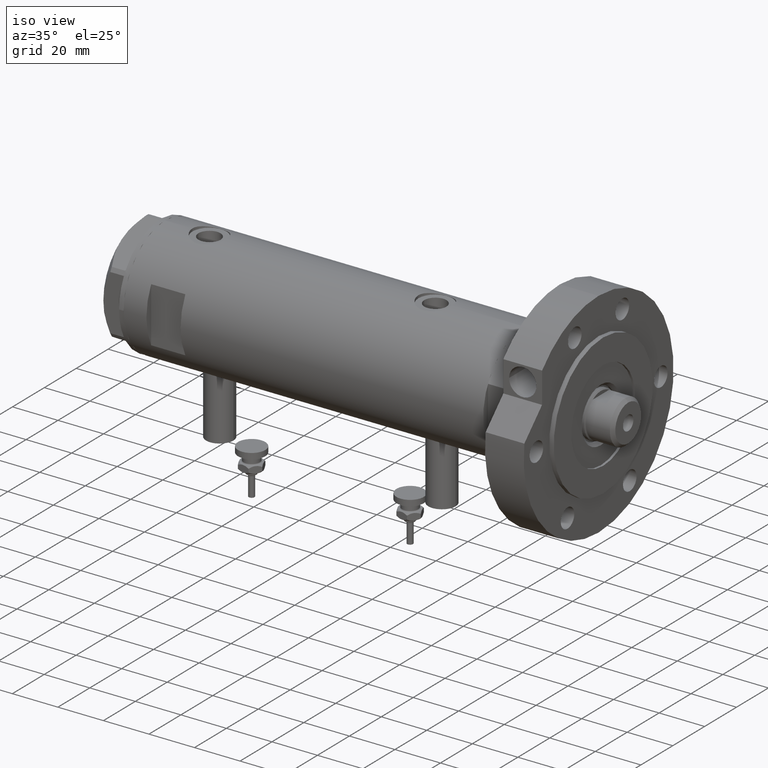
[diagram: clean part render]
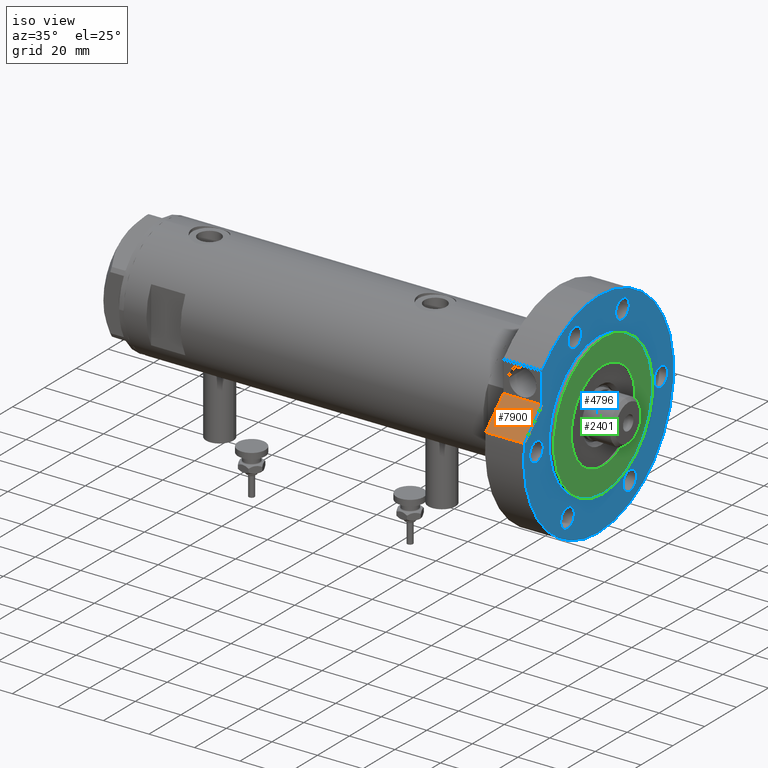
[diagram: same view with three faces highlighted in distinct colors, each labeled with its STEP entity id]
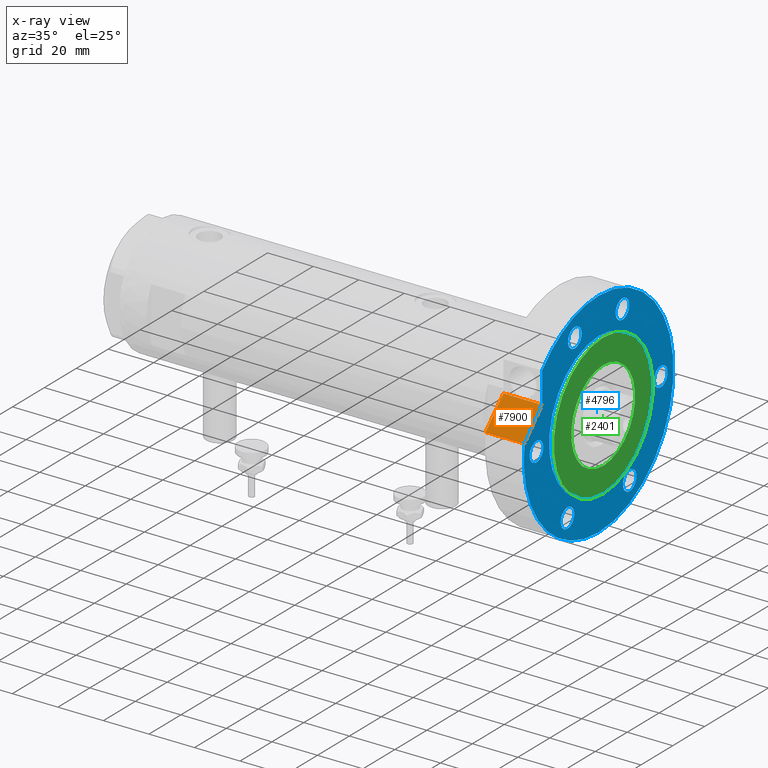
[diagram: x-ray of the same camera — body ghosted, the three highlighted faces saturated]
A machine part, iso view with three faces highlighted in distinct colors.
The next image is the same camera in x-ray (body ghosted, the three faces saturated) — at least one of them is partly hidden behind the body in this view.
Their STEP definitions:

[orange] entity #7900 — the highlighted planar face has unit normal (-0, 0.7071, -0.7071).
#119 = EDGE_CURVE ( 'NONE', #4476, #2742, #2832, .T. ) ;
#194 = CARTESIAN_POINT ( 'NONE',  ( 6.092310621118299352, 46.60347359688769586, 17.00000000000000000 ) ) ;
#790 = ORIENTED_EDGE ( 'NONE', *, *, #3717, .F. ) ;
#897 = VECTOR ( 'NONE', #1843, 999.9999999999998863 ) ;
#950 = LINE ( 'NONE', #3419, #7839 ) ;
#1762 = ORIENTED_EDGE ( 'NONE', *, *, #6069, .F. ) ;
#1804 = ORIENTED_EDGE ( 'NONE', *, *, #119, .T. ) ;
#1843 = DIRECTION ( 'NONE',  ( 0.7071067811865511255, -0.7071067811865440200, -0.000000000000000000 ) ) ;
#1908 = CARTESIAN_POINT ( 'NONE',  ( 17.22217135699461110, 35.47361286101150313, 0.000000000000000000 ) ) ;
#2241 = DIRECTION ( 'NONE',  ( 0.7071067811865511255, -0.7071067811865440200, 0.000000000000000000 ) ) ;
#2339 = CARTESIAN_POINT ( 'NONE',  ( 17.22217135699461110, 35.47361286101150313, 17.00000000000000000 ) ) ;
#2673 = ORIENTED_EDGE ( 'NONE', *, *, #6014, .T. ) ;
#2742 = VERTEX_POINT ( 'NONE', #194 ) ;
#2832 = LINE ( 'NONE', #5201, #7341 ) ;
#3162 = VERTEX_POINT ( 'NONE', #3977 ) ;
#3419 = CARTESIAN_POINT ( 'NONE',  ( 26.34789210900296652, 26.34789210900323297, 17.00000000000000000 ) ) ;
#3491 = CARTESIAN_POINT ( 'NONE',  ( 17.22217135699461110, 35.47361286101150313, 0.000000000000000000 ) ) ;
#3656 = LINE ( 'NONE', #3491, #897 ) ;
#3717 = EDGE_CURVE ( 'NONE', #3162, #4267, #6638, .T. ) ;
#3977 = CARTESIAN_POINT ( 'NONE',  ( 17.22217135699460755, 35.47361286101150313, 0.000000000000000000 ) ) ;
#4267 = VERTEX_POINT ( 'NONE', #2339 ) ;
#4281 = DIRECTION ( 'NONE',  ( -0.000000000000000000, -0.000000000000000000, 1.000000000000000000 ) ) ;
#4476 = VERTEX_POINT ( 'NONE', #6542 ) ;
#4504 = DIRECTION ( 'NONE',  ( -0.7071067811865440200, -0.7071067811865511255, 0.000000000000000000 ) ) ;
#5109 = FACE_OUTER_BOUND ( 'NONE', #5746, .T. ) ;
#5201 = CARTESIAN_POINT ( 'NONE',  ( 6.092310621118299352, 46.60347359688769586, 0.000000000000000000 ) ) ;
#5746 = EDGE_LOOP ( 'NONE', ( #2673, #790, #1762, #1804 ) ) ;
#6014 = EDGE_CURVE ( 'NONE', #2742, #4267, #950, .T. ) ;
#6069 = EDGE_CURVE ( 'NONE', #4476, #3162, #3656, .T. ) ;
#6542 = CARTESIAN_POINT ( 'NONE',  ( 6.092310621118299352, 46.60347359688769586, 0.000000000000000000 ) ) ;
#6638 = LINE ( 'NONE', #1908, #7698 ) ;
#6957 = DIRECTION ( 'NONE',  ( 0.7071067811865511255, -0.7071067811865440200, 0.000000000000000000 ) ) ;
#7035 = CARTESIAN_POINT ( 'NONE',  ( 17.22217135699461110, 35.47361286101150313, 0.000000000000000000 ) ) ;
#7215 = AXIS2_PLACEMENT_3D ( 'NONE', #7035, #4504, #6957 ) ;
#7341 = VECTOR ( 'NONE', #7524, 1000.000000000000000 ) ;
#7524 = DIRECTION ( 'NONE',  ( -0.000000000000000000, -0.000000000000000000, 1.000000000000000000 ) ) ;
#7554 = PLANE ( 'NONE',  #7215 ) ;
#7698 = VECTOR ( 'NONE', #4281, 1000.000000000000000 ) ;
#7839 = VECTOR ( 'NONE', #2241, 999.9999999999998863 ) ;
#7900 = ADVANCED_FACE ( 'NONE', ( #5109 ), #7554, .F. ) ;

[blue] entity #4796 — the highlighted planar face has unit normal (1, 0, -0).
#124 = AXIS2_PLACEMENT_3D ( 'NONE', #3122, #4837, #7277 ) ;
#152 = VERTEX_POINT ( 'NONE', #4553 ) ;
#180 = VERTEX_POINT ( 'NONE', #886 ) ;
#194 = CARTESIAN_POINT ( 'NONE',  ( 6.092310621118299352, 46.60347359688769586, 17.00000000000000000 ) ) ;
#204 = EDGE_CURVE ( 'NONE', #3817, #2890, #7472, .T. ) ;
#209 = ORIENTED_EDGE ( 'NONE', *, *, #7247, .F. ) ;
#239 = CARTESIAN_POINT ( 'NONE',  ( 0.000000000000000000, 39.00000000000000000, 17.00000000000000000 ) ) ;
#323 = CARTESIAN_POINT ( 'NONE',  ( -31.00000000000000711, 0.000000000000000000, 17.00000000000000000 ) ) ;
#364 = EDGE_CURVE ( 'NONE', #1873, #7558, #4274, .T. ) ;
#393 = AXIS2_PLACEMENT_3D ( 'NONE', #4182, #6620, #1768 ) ;
#419 = ORIENTED_EDGE ( 'NONE', *, *, #7782, .F. ) ;
#512 = CIRCLE ( 'NONE', #6034, 46.99999999999999289 ) ;
#528 = CARTESIAN_POINT ( 'NONE',  ( 40.28130176794012129, -14.92465386223865842, 17.00000000000000000 ) ) ;
#713 = PLANE ( 'NONE',  #1805 ) ;
#758 = CARTESIAN_POINT ( 'NONE',  ( -38.02499074759315079, 19.49999999999992539, 17.00000000000000000 ) ) ;
#824 = VERTEX_POINT ( 'NONE', #1900 ) ;
#886 = CARTESIAN_POINT ( 'NONE',  ( -29.52499074759301578, -19.50000000000015277, 17.00000000000000000 ) ) ;
#931 = DIRECTION ( 'NONE',  ( 1.000000000000000000, 0.000000000000000000, 0.000000000000000000 ) ) ;
#932 = CIRCLE ( 'NONE', #4789, 46.99999999999999289 ) ;
#950 = LINE ( 'NONE', #3419, #7839 ) ;
#965 = CARTESIAN_POINT ( 'NONE',  ( 4.250000000000000888, 39.00000000000000000, 17.00000000000000000 ) ) ;
#1014 = CARTESIAN_POINT ( 'NONE',  ( 36.03130176794011419, 14.92465386223865842, 17.00000000000000000 ) ) ;
#1131 = CARTESIAN_POINT ( 'NONE',  ( 31.78130176794011064, 14.92465386223865842, 17.00000000000000000 ) ) ;
#1185 = CARTESIAN_POINT ( 'NONE',  ( -33.77499074759302289, -19.50000000000015277, 17.00000000000000000 ) ) ;
#1229 = DIRECTION ( 'NONE',  ( 1.000000000000000000, 0.000000000000000000, 0.000000000000000000 ) ) ;
#1296 = AXIS2_PLACEMENT_3D ( 'NONE', #6671, #7357, #6715 ) ;
#1315 = CIRCLE ( 'NONE', #4909, 31.00000000000000711 ) ;
#1336 = CARTESIAN_POINT ( 'NONE',  ( 30.83217135699462830, 35.47361286101148892, 17.00000000000000000 ) ) ;
#1341 = AXIS2_PLACEMENT_3D ( 'NONE', #2567, #2610, #3785 ) ;
#1349 = CARTESIAN_POINT ( 'NONE',  ( 40.28130176794012129, 14.92465386223865842, 17.00000000000000000 ) ) ;
#1388 = FACE_BOUND ( 'NONE', #1776, .T. ) ;
#1422 = CIRCLE ( 'NONE', #1341, 4.250000000000000888 ) ;
#1459 = AXIS2_PLACEMENT_3D ( 'NONE', #6007, #4717, #6527 ) ;
#1531 = ORIENTED_EDGE ( 'NONE', *, *, #7781, .T. ) ;
#1555 = DIRECTION ( 'NONE',  ( 1.000000000000000000, 0.000000000000000000, 0.000000000000000000 ) ) ;
#1583 = CARTESIAN_POINT ( 'NONE',  ( 36.03130176794011419, 14.92465386223865842, 17.00000000000000000 ) ) ;
#1708 = DIRECTION ( 'NONE',  ( 0.000000000000000000, 0.000000000000000000, 1.000000000000000000 ) ) ;
#1768 = DIRECTION ( 'NONE',  ( 1.000000000000000000, 0.000000000000000000, 0.000000000000000000 ) ) ;
#1776 = EDGE_LOOP ( 'NONE', ( #2712, #4375 ) ) ;
#1795 = DIRECTION ( 'NONE',  ( 1.000000000000000000, 0.000000000000000000, 0.000000000000000000 ) ) ;
#1805 = AXIS2_PLACEMENT_3D ( 'NONE', #5581, #7505, #7461 ) ;
#1873 = VERTEX_POINT ( 'NONE', #1349 ) ;
#1884 = EDGE_LOOP ( 'NONE', ( #2767, #5676 ) ) ;
#1900 = CARTESIAN_POINT ( 'NONE',  ( 31.78130176794011064, -14.92465386223865842, 17.00000000000000000 ) ) ;
#1946 = CIRCLE ( 'NONE', #124, 4.250000000000003553 ) ;
#1958 = CARTESIAN_POINT ( 'NONE',  ( -33.77499074759315079, 19.49999999999992539, 17.00000000000000000 ) ) ;
#2012 = EDGE_CURVE ( 'NONE', #4256, #824, #6597, .T. ) ;
#2060 = CARTESIAN_POINT ( 'NONE',  ( 0.000000000000000000, 0.000000000000000000, 17.00000000000000000 ) ) ;
#2106 = EDGE_LOOP ( 'NONE', ( #209, #6659 ) ) ;
#2112 = ORIENTED_EDGE ( 'NONE', *, *, #4852, .F. ) ;
#2143 = DIRECTION ( 'NONE',  ( 0.000000000000000000, 0.000000000000000000, 1.000000000000000000 ) ) ;
#2192 = EDGE_CURVE ( 'NONE', #2640, #4579, #7498, .T. ) ;
#2223 = DIRECTION ( 'NONE',  ( 0.000000000000000000, 0.000000000000000000, 1.000000000000000000 ) ) ;
#2241 = DIRECTION ( 'NONE',  ( 0.7071067811865511255, -0.7071067811865440200, 0.000000000000000000 ) ) ;
#2269 = ORIENTED_EDGE ( 'NONE', *, *, #5683, .F. ) ;
#2328 = CIRCLE ( 'NONE', #3759, 4.249999999999996447 ) ;
#2339 = CARTESIAN_POINT ( 'NONE',  ( 17.22217135699461110, 35.47361286101150313, 17.00000000000000000 ) ) ;
#2342 = EDGE_CURVE ( 'NONE', #824, #4256, #7040, .T. ) ;
#2362 = DIRECTION ( 'NONE',  ( 0.000000000000000000, 0.000000000000000000, 1.000000000000000000 ) ) ;
#2474 = CARTESIAN_POINT ( 'NONE',  ( 4.250000000000000888, -39.00000000000000000, 17.00000000000000000 ) ) ;
#2535 = VERTEX_POINT ( 'NONE', #7927 ) ;
#2567 = CARTESIAN_POINT ( 'NONE',  ( 0.000000000000000000, 39.00000000000000000, 17.00000000000000000 ) ) ;
#2606 = AXIS2_PLACEMENT_3D ( 'NONE', #5844, #6964, #7684 ) ;
#2610 = DIRECTION ( 'NONE',  ( 0.000000000000000000, 0.000000000000000000, 1.000000000000000000 ) ) ;
#2632 = VERTEX_POINT ( 'NONE', #758 ) ;
#2640 = VERTEX_POINT ( 'NONE', #7595 ) ;
#2648 = FACE_BOUND ( 'NONE', #3802, .T. ) ;
#2664 = DIRECTION ( 'NONE',  ( 1.000000000000000000, 0.000000000000000000, 0.000000000000000000 ) ) ;
#2688 = EDGE_CURVE ( 'NONE', #5032, #2632, #6398, .T. ) ;
#2712 = ORIENTED_EDGE ( 'NONE', *, *, #4264, .F. ) ;
#2730 = CARTESIAN_POINT ( 'NONE',  ( 3.617158501555293296E-14, 35.47361286101151734, 17.00000000000000000 ) ) ;
#2742 = VERTEX_POINT ( 'NONE', #194 ) ;
#2767 = ORIENTED_EDGE ( 'NONE', *, *, #6255, .F. ) ;
#2890 = VERTEX_POINT ( 'NONE', #3439 ) ;
#2952 = AXIS2_PLACEMENT_3D ( 'NONE', #3196, #3161, #5594 ) ;
#3065 = VERTEX_POINT ( 'NONE', #4024 ) ;
#3122 = CARTESIAN_POINT ( 'NONE',  ( -33.77499074759302289, -19.50000000000015277, 17.00000000000000000 ) ) ;
#3161 = DIRECTION ( 'NONE',  ( 0.000000000000000000, 0.000000000000000000, 1.000000000000000000 ) ) ;
#3196 = CARTESIAN_POINT ( 'NONE',  ( -33.77499074759315079, 19.49999999999992539, 17.00000000000000000 ) ) ;
#3214 = FACE_BOUND ( 'NONE', #1884, .T. ) ;
#3254 = ORIENTED_EDGE ( 'NONE', *, *, #3674, .T. ) ;
#3266 = CARTESIAN_POINT ( 'NONE',  ( -38.02499074759302289, -19.50000000000015277, 17.00000000000000000 ) ) ;
#3408 = DIRECTION ( 'NONE',  ( 1.000000000000000000, 0.000000000000000000, 0.000000000000000000 ) ) ;
#3419 = CARTESIAN_POINT ( 'NONE',  ( 26.34789210900296652, 26.34789210900323297, 17.00000000000000000 ) ) ;
#3439 = CARTESIAN_POINT ( 'NONE',  ( -4.250000000000000888, -39.00000000000000000, 17.00000000000000000 ) ) ;
#3494 = DIRECTION ( 'NONE',  ( 0.000000000000000000, 0.000000000000000000, 1.000000000000000000 ) ) ;
#3674 = EDGE_CURVE ( 'NONE', #2535, #3871, #512, .T. ) ;
#3759 = AXIS2_PLACEMENT_3D ( 'NONE', #1958, #6770, #1229 ) ;
#3769 = AXIS2_PLACEMENT_3D ( 'NONE', #1185, #7287, #4884 ) ;
#3785 = DIRECTION ( 'NONE',  ( 1.000000000000000000, 0.000000000000000000, 0.000000000000000000 ) ) ;
#3802 = EDGE_LOOP ( 'NONE', ( #7276, #4936 ) ) ;
#3817 = VERTEX_POINT ( 'NONE', #2474 ) ;
#3824 = ORIENTED_EDGE ( 'NONE', *, *, #364, .F. ) ;
#3825 = EDGE_CURVE ( 'NONE', #180, #5545, #1946, .T. ) ;
#3871 = VERTEX_POINT ( 'NONE', #1336 ) ;
#3877 = DIRECTION ( 'NONE',  ( 1.000000000000000000, 0.000000000000000000, 0.000000000000000000 ) ) ;
#3882 = EDGE_LOOP ( 'NONE', ( #419, #3824 ) ) ;
#3976 = LINE ( 'NONE', #2730, #7057 ) ;
#4024 = CARTESIAN_POINT ( 'NONE',  ( 31.00000000000000711, 3.796405077356795904E-15, 17.00000000000000000 ) ) ;
#4182 = CARTESIAN_POINT ( 'NONE',  ( 0.000000000000000000, 0.000000000000000000, 17.00000000000000000 ) ) ;
#4247 = EDGE_LOOP ( 'NONE', ( #2269, #7286 ) ) ;
#4256 = VERTEX_POINT ( 'NONE', #528 ) ;
#4264 = EDGE_CURVE ( 'NONE', #2890, #3817, #5411, .T. ) ;
#4267 = VERTEX_POINT ( 'NONE', #2339 ) ;
#4274 = CIRCLE ( 'NONE', #5293, 4.250000000000003553 ) ;
#4375 = ORIENTED_EDGE ( 'NONE', *, *, #204, .F. ) ;
#4553 = CARTESIAN_POINT ( 'NONE',  ( -46.99999999999999289, 0.000000000000000000, 17.00000000000000000 ) ) ;
#4579 = VERTEX_POINT ( 'NONE', #965 ) ;
#4602 = CARTESIAN_POINT ( 'NONE',  ( 0.000000000000000000, 0.000000000000000000, 17.00000000000000000 ) ) ;
#4717 = DIRECTION ( 'NONE',  ( 0.000000000000000000, 0.000000000000000000, 1.000000000000000000 ) ) ;
#4789 = AXIS2_PLACEMENT_3D ( 'NONE', #2060, #7720, #931 ) ;
#4796 = ADVANCED_FACE ( 'NONE', ( #6253, #5056, #2648, #1388, #7419, #3214, #6222, #6294 ), #713, .T. ) ;
#4837 = DIRECTION ( 'NONE',  ( 0.000000000000000000, 0.000000000000000000, 1.000000000000000000 ) ) ;
#4852 = EDGE_CURVE ( 'NONE', #4579, #2640, #1422, .T. ) ;
#4884 = DIRECTION ( 'NONE',  ( 1.000000000000000000, 0.000000000000000000, 0.000000000000000000 ) ) ;
#4909 = AXIS2_PLACEMENT_3D ( 'NONE', #4602, #3494, #7052 ) ;
#4936 = ORIENTED_EDGE ( 'NONE', *, *, #2012, .F. ) ;
#4998 = ORIENTED_EDGE ( 'NONE', *, *, #6082, .T. ) ;
#5032 = VERTEX_POINT ( 'NONE', #7659 ) ;
#5056 = FACE_BOUND ( 'NONE', #3882, .T. ) ;
#5111 = DIRECTION ( 'NONE',  ( 0.000000000000000000, 0.000000000000000000, 1.000000000000000000 ) ) ;
#5152 = EDGE_LOOP ( 'NONE', ( #7459, #2112 ) ) ;
#5293 = AXIS2_PLACEMENT_3D ( 'NONE', #1014, #1708, #6002 ) ;
#5300 = DIRECTION ( 'NONE',  ( 1.000000000000000000, -1.019675812477181804E-15, 0.000000000000000000 ) ) ;
#5341 = ORIENTED_EDGE ( 'NONE', *, *, #6014, .F. ) ;
#5400 = CARTESIAN_POINT ( 'NONE',  ( 0.000000000000000000, 0.000000000000000000, 17.00000000000000000 ) ) ;
#5411 = CIRCLE ( 'NONE', #1296, 4.250000000000000888 ) ;
#5427 = AXIS2_PLACEMENT_3D ( 'NONE', #1583, #2223, #3877 ) ;
#5545 = VERTEX_POINT ( 'NONE', #3266 ) ;
#5581 = CARTESIAN_POINT ( 'NONE',  ( 0.000000000000000000, 0.000000000000000000, 17.00000000000000000 ) ) ;
#5584 = EDGE_CURVE ( 'NONE', #4267, #3871, #3976, .T. ) ;
#5594 = DIRECTION ( 'NONE',  ( 1.000000000000000000, 0.000000000000000000, 0.000000000000000000 ) ) ;
#5676 = ORIENTED_EDGE ( 'NONE', *, *, #2688, .F. ) ;
#5683 = EDGE_CURVE ( 'NONE', #6425, #3065, #7577, .T. ) ;
#5844 = CARTESIAN_POINT ( 'NONE',  ( 0.000000000000000000, -39.00000000000000000, 17.00000000000000000 ) ) ;
#5938 = CIRCLE ( 'NONE', #5427, 4.250000000000003553 ) ;
#6002 = DIRECTION ( 'NONE',  ( 1.000000000000000000, 0.000000000000000000, 0.000000000000000000 ) ) ;
#6007 = CARTESIAN_POINT ( 'NONE',  ( 36.03130176794011419, -14.92465386223865842, 17.00000000000000000 ) ) ;
#6014 = EDGE_CURVE ( 'NONE', #2742, #4267, #950, .T. ) ;
#6034 = AXIS2_PLACEMENT_3D ( 'NONE', #5400, #7014, #1555 ) ;
#6082 = EDGE_CURVE ( 'NONE', #152, #2535, #7450, .T. ) ;
#6099 = CARTESIAN_POINT ( 'NONE',  ( 0.000000000000000000, 0.000000000000000000, 17.00000000000000000 ) ) ;
#6222 = FACE_OUTER_BOUND ( 'NONE', #6257, .T. ) ;
#6253 = FACE_BOUND ( 'NONE', #5152, .T. ) ;
#6255 = EDGE_CURVE ( 'NONE', #2632, #5032, #2328, .T. ) ;
#6257 = EDGE_LOOP ( 'NONE', ( #7284, #5341, #1531, #4998, #3254 ) ) ;
#6294 = FACE_BOUND ( 'NONE', #4247, .T. ) ;
#6398 = CIRCLE ( 'NONE', #2952, 4.249999999999996447 ) ;
#6425 = VERTEX_POINT ( 'NONE', #323 ) ;
#6447 = CIRCLE ( 'NONE', #3769, 4.250000000000003553 ) ;
#6527 = DIRECTION ( 'NONE',  ( 1.000000000000000000, 0.000000000000000000, 0.000000000000000000 ) ) ;
#6597 = CIRCLE ( 'NONE', #1459, 4.250000000000003553 ) ;
#6620 = DIRECTION ( 'NONE',  ( 0.000000000000000000, 0.000000000000000000, 1.000000000000000000 ) ) ;
#6659 = ORIENTED_EDGE ( 'NONE', *, *, #3825, .F. ) ;
#6671 = CARTESIAN_POINT ( 'NONE',  ( 0.000000000000000000, -39.00000000000000000, 17.00000000000000000 ) ) ;
#6715 = DIRECTION ( 'NONE',  ( 1.000000000000000000, 0.000000000000000000, 0.000000000000000000 ) ) ;
#6770 = DIRECTION ( 'NONE',  ( 0.000000000000000000, 0.000000000000000000, 1.000000000000000000 ) ) ;
#6964 = DIRECTION ( 'NONE',  ( 0.000000000000000000, 0.000000000000000000, 1.000000000000000000 ) ) ;
#7014 = DIRECTION ( 'NONE',  ( 0.000000000000000000, 0.000000000000000000, 1.000000000000000000 ) ) ;
#7040 = CIRCLE ( 'NONE', #7424, 4.250000000000003553 ) ;
#7052 = DIRECTION ( 'NONE',  ( 1.000000000000000000, 0.000000000000000000, 0.000000000000000000 ) ) ;
#7057 = VECTOR ( 'NONE', #5300, 1000.000000000000000 ) ;
#7201 = EDGE_CURVE ( 'NONE', #3065, #6425, #1315, .T. ) ;
#7247 = EDGE_CURVE ( 'NONE', #5545, #180, #6447, .T. ) ;
#7276 = ORIENTED_EDGE ( 'NONE', *, *, #2342, .F. ) ;
#7277 = DIRECTION ( 'NONE',  ( 1.000000000000000000, 0.000000000000000000, 0.000000000000000000 ) ) ;
#7284 = ORIENTED_EDGE ( 'NONE', *, *, #5584, .F. ) ;
#7286 = ORIENTED_EDGE ( 'NONE', *, *, #7201, .F. ) ;
#7287 = DIRECTION ( 'NONE',  ( 0.000000000000000000, 0.000000000000000000, 1.000000000000000000 ) ) ;
#7357 = DIRECTION ( 'NONE',  ( 0.000000000000000000, 0.000000000000000000, 1.000000000000000000 ) ) ;
#7419 = FACE_BOUND ( 'NONE', #2106, .T. ) ;
#7424 = AXIS2_PLACEMENT_3D ( 'NONE', #7645, #2143, #3408 ) ;
#7450 = CIRCLE ( 'NONE', #7711, 46.99999999999999289 ) ;
#7459 = ORIENTED_EDGE ( 'NONE', *, *, #2192, .F. ) ;
#7461 = DIRECTION ( 'NONE',  ( 1.000000000000000000, 0.000000000000000000, -0.000000000000000000 ) ) ;
#7472 = CIRCLE ( 'NONE', #2606, 4.250000000000000888 ) ;
#7498 = CIRCLE ( 'NONE', #7887, 4.250000000000000888 ) ;
#7505 = DIRECTION ( 'NONE',  ( 0.000000000000000000, 0.000000000000000000, 1.000000000000000000 ) ) ;
#7558 = VERTEX_POINT ( 'NONE', #1131 ) ;
#7577 = CIRCLE ( 'NONE', #393, 31.00000000000000711 ) ;
#7595 = CARTESIAN_POINT ( 'NONE',  ( -4.250000000000000888, 39.00000000000000000, 17.00000000000000000 ) ) ;
#7645 = CARTESIAN_POINT ( 'NONE',  ( 36.03130176794011419, -14.92465386223865842, 17.00000000000000000 ) ) ;
#7659 = CARTESIAN_POINT ( 'NONE',  ( -29.52499074759315434, 19.49999999999992539, 17.00000000000000000 ) ) ;
#7684 = DIRECTION ( 'NONE',  ( 1.000000000000000000, 0.000000000000000000, 0.000000000000000000 ) ) ;
#7711 = AXIS2_PLACEMENT_3D ( 'NONE', #6099, #2362, #1795 ) ;
#7720 = DIRECTION ( 'NONE',  ( 0.000000000000000000, 0.000000000000000000, 1.000000000000000000 ) ) ;
#7781 = EDGE_CURVE ( 'NONE', #2742, #152, #932, .T. ) ;
#7782 = EDGE_CURVE ( 'NONE', #7558, #1873, #5938, .T. ) ;
#7839 = VECTOR ( 'NONE', #2241, 999.9999999999998863 ) ;
#7887 = AXIS2_PLACEMENT_3D ( 'NONE', #239, #5111, #2664 ) ;
#7927 = CARTESIAN_POINT ( 'NONE',  ( 46.99999999999999289, 5.755839955992559063E-15, 17.00000000000000000 ) ) ;

[green] entity #2401 — the highlighted planar face has unit normal (1, 0, -0).
#213 = CARTESIAN_POINT ( 'NONE',  ( 0.000000000000000000, 0.000000000000000000, 19.00000000000000355 ) ) ;
#411 = AXIS2_PLACEMENT_3D ( 'NONE', #5749, #3603, #6092 ) ;
#869 = VERTEX_POINT ( 'NONE', #7471 ) ;
#936 = DIRECTION ( 'NONE',  ( 1.000000000000000000, 0.000000000000000000, -0.000000000000000000 ) ) ;
#1540 = FACE_OUTER_BOUND ( 'NONE', #3345, .T. ) ;
#1869 = EDGE_CURVE ( 'NONE', #6839, #869, #5567, .T. ) ;
#2046 = AXIS2_PLACEMENT_3D ( 'NONE', #7122, #3998, #936 ) ;
#2132 = VERTEX_POINT ( 'NONE', #7328 ) ;
#2306 = ORIENTED_EDGE ( 'NONE', *, *, #7143, .F. ) ;
#2401 = ADVANCED_FACE ( 'NONE', ( #5238, #1540 ), #6489, .T. ) ;
#2438 = ORIENTED_EDGE ( 'NONE', *, *, #1869, .T. ) ;
#2581 = CIRCLE ( 'NONE', #5405, 31.00000000000000711 ) ;
#2747 = CARTESIAN_POINT ( 'NONE',  ( 0.000000000000000000, 0.000000000000000000, 19.00000000000000355 ) ) ;
#3345 = EDGE_LOOP ( 'NONE', ( #3809, #2438 ) ) ;
#3603 = DIRECTION ( 'NONE',  ( 0.000000000000000000, 0.000000000000000000, 1.000000000000000000 ) ) ;
#3799 = EDGE_LOOP ( 'NONE', ( #5937, #2306 ) ) ;
#3809 = ORIENTED_EDGE ( 'NONE', *, *, #3919, .T. ) ;
#3919 = EDGE_CURVE ( 'NONE', #869, #6839, #2581, .T. ) ;
#3965 = DIRECTION ( 'NONE',  ( 0.000000000000000000, 0.000000000000000000, 1.000000000000000000 ) ) ;
#3998 = DIRECTION ( 'NONE',  ( 0.000000000000000000, 0.000000000000000000, 1.000000000000000000 ) ) ;
#4443 = CARTESIAN_POINT ( 'NONE',  ( 0.000000000000000000, 0.000000000000000000, 19.00000000000000355 ) ) ;
#4449 = DIRECTION ( 'NONE',  ( 1.000000000000000000, 0.000000000000000000, 0.000000000000000000 ) ) ;
#5034 = DIRECTION ( 'NONE',  ( 1.000000000000000000, 0.000000000000000000, 0.000000000000000000 ) ) ;
#5107 = DIRECTION ( 'NONE',  ( 0.000000000000000000, 0.000000000000000000, 1.000000000000000000 ) ) ;
#5238 = FACE_BOUND ( 'NONE', #3799, .T. ) ;
#5405 = AXIS2_PLACEMENT_3D ( 'NONE', #2747, #5107, #5034 ) ;
#5567 = CIRCLE ( 'NONE', #5824, 31.00000000000000711 ) ;
#5580 = DIRECTION ( 'NONE',  ( 0.000000000000000000, 0.000000000000000000, 1.000000000000000000 ) ) ;
#5749 = CARTESIAN_POINT ( 'NONE',  ( 0.000000000000000000, 0.000000000000000000, 19.00000000000000355 ) ) ;
#5784 = CARTESIAN_POINT ( 'NONE',  ( 20.00000000000000000, 0.000000000000000000, 19.00000000000000355 ) ) ;
#5824 = AXIS2_PLACEMENT_3D ( 'NONE', #4443, #3965, #6330 ) ;
#5937 = ORIENTED_EDGE ( 'NONE', *, *, #7485, .F. ) ;
#6092 = DIRECTION ( 'NONE',  ( 1.000000000000000000, 0.000000000000000000, 0.000000000000000000 ) ) ;
#6260 = CARTESIAN_POINT ( 'NONE',  ( 31.00000000000000711, 3.796405077356795904E-15, 19.00000000000000355 ) ) ;
#6330 = DIRECTION ( 'NONE',  ( 1.000000000000000000, 0.000000000000000000, 0.000000000000000000 ) ) ;
#6378 = VERTEX_POINT ( 'NONE', #5784 ) ;
#6489 = PLANE ( 'NONE',  #2046 ) ;
#6705 = CIRCLE ( 'NONE', #411, 20.00000000000000000 ) ;
#6828 = CIRCLE ( 'NONE', #7854, 20.00000000000000000 ) ;
#6839 = VERTEX_POINT ( 'NONE', #6260 ) ;
#7122 = CARTESIAN_POINT ( 'NONE',  ( 0.000000000000000000, 0.000000000000000000, 19.00000000000000355 ) ) ;
#7143 = EDGE_CURVE ( 'NONE', #2132, #6378, #6828, .T. ) ;
#7328 = CARTESIAN_POINT ( 'NONE',  ( -20.00000000000000000, 2.449293598294706513E-15, 19.00000000000000355 ) ) ;
#7471 = CARTESIAN_POINT ( 'NONE',  ( -31.00000000000000711, 0.000000000000000000, 19.00000000000000355 ) ) ;
#7485 = EDGE_CURVE ( 'NONE', #6378, #2132, #6705, .T. ) ;
#7854 = AXIS2_PLACEMENT_3D ( 'NONE', #213, #5580, #4449 ) ;